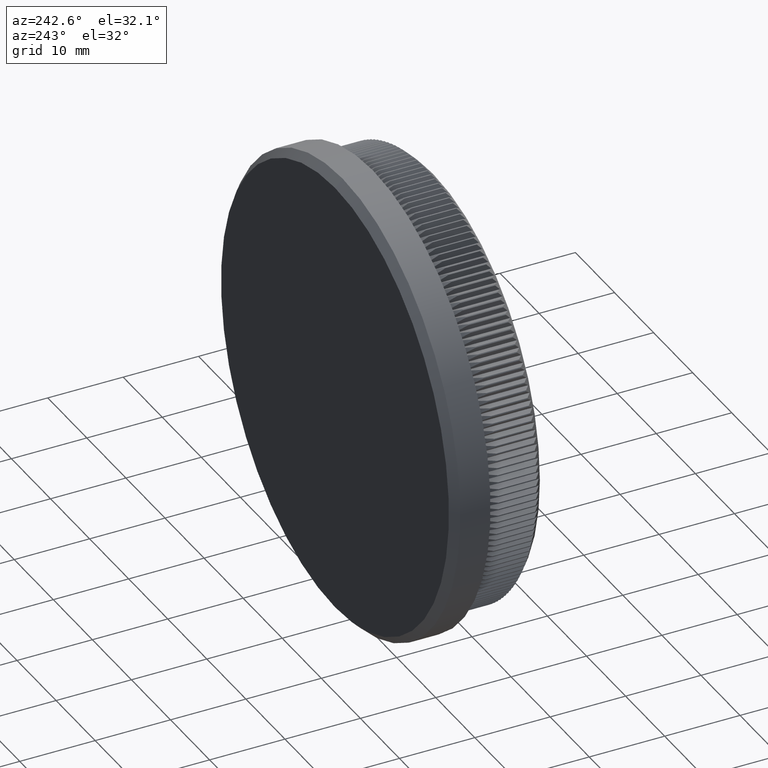
[diagram: clean part render]
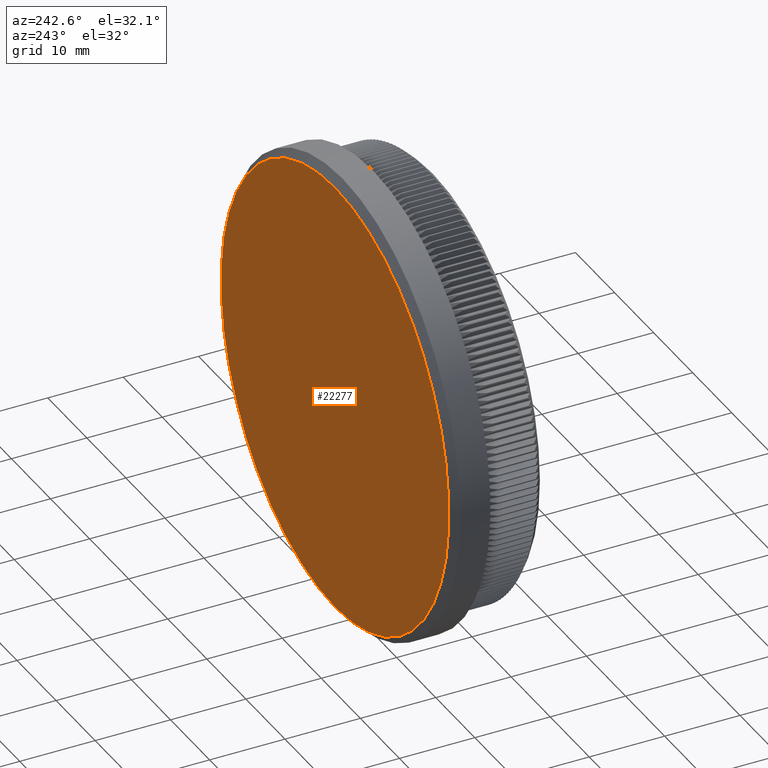
[diagram: same view with one face highlighted and labeled with its STEP entity id]
A machine part, auxiliary view. The second image highlights one B-rep face of the part: STEP entity #22277.
In plain terms, the highlighted planar face has unit normal (0, 1, 0).
Its self-contained STEP definition (entity closure, byte-faithful):
#2203 = EDGE_LOOP ( 'NONE', ( #16742, #9346 ) ) ;
#2274 = VERTEX_POINT ( 'NONE', #8741 ) ;
#6215 = AXIS2_PLACEMENT_3D ( 'NONE', #35183, #8696, #17764 ) ;
#6861 = EDGE_CURVE ( 'NONE', #2274, #34901, #9527, .T. ) ;
#8696 = DIRECTION ( 'NONE',  ( 0.0000000000000000000, 1.000000000000000000, 0.0000000000000000000 ) ) ;
#8741 = CARTESIAN_POINT ( 'NONE',  ( 0.0000000000000000000, 13.00000000000000000, -29.14999999999998400 ) ) ;
#9346 = ORIENTED_EDGE ( 'NONE', *, *, #14610, .T. ) ;
#9527 = CIRCLE ( 'NONE', #6215, 29.14999999999998400 ) ;
#10336 = DIRECTION ( 'NONE',  ( 0.0000000000000000000, -0.0000000000000000000, 1.000000000000000000 ) ) ;
#10467 = DIRECTION ( 'NONE',  ( 0.0000000000000000000, 1.000000000000000000, 0.0000000000000000000 ) ) ;
#12314 = CARTESIAN_POINT ( 'NONE',  ( 3.631077759471901200E-015, 13.00000000000000000, 29.14999999999998400 ) ) ;
#14512 = FACE_OUTER_BOUND ( 'NONE', #2203, .T. ) ;
#14610 = EDGE_CURVE ( 'NONE', #34901, #2274, #29753, .T. ) ;
#14616 = DIRECTION ( 'NONE',  ( 0.0000000000000000000, 1.000000000000000000, 0.0000000000000000000 ) ) ;
#16742 = ORIENTED_EDGE ( 'NONE', *, *, #6861, .T. ) ;
#17764 = DIRECTION ( 'NONE',  ( 0.0000000000000000000, 0.0000000000000000000, 1.000000000000000000 ) ) ;
#22208 = AXIS2_PLACEMENT_3D ( 'NONE', #23252, #14616, #26305 ) ;
#22277 = ADVANCED_FACE ( 'NONE', ( #14512 ), #28047, .T. ) ;
#23252 = CARTESIAN_POINT ( 'NONE',  ( 0.0000000000000000000, 13.00000000000000000, 0.0000000000000000000 ) ) ;
#26305 = DIRECTION ( 'NONE',  ( 0.0000000000000000000, 0.0000000000000000000, 1.000000000000000000 ) ) ;
#28047 = PLANE ( 'NONE',  #29573 ) ;
#29573 = AXIS2_PLACEMENT_3D ( 'NONE', #36303, #10467, #10336 ) ;
#29753 = CIRCLE ( 'NONE', #22208, 29.14999999999998400 ) ;
#34901 = VERTEX_POINT ( 'NONE', #12314 ) ;
#35183 = CARTESIAN_POINT ( 'NONE',  ( 0.0000000000000000000, 13.00000000000000000, 0.0000000000000000000 ) ) ;
#36303 = CARTESIAN_POINT ( 'NONE',  ( 0.0000000000000000000, 13.00000000000000000, 0.0000000000000000000 ) ) ;